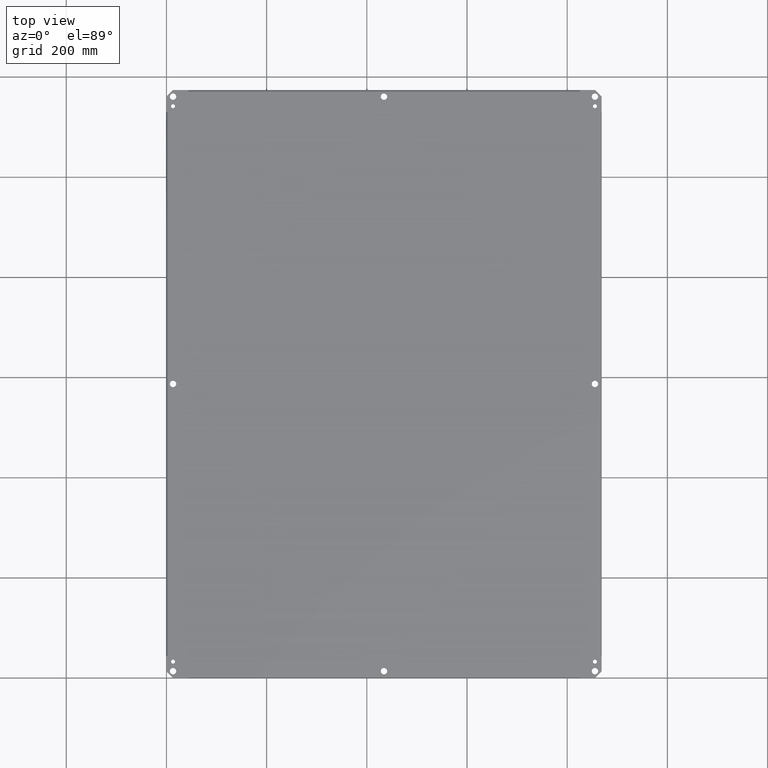
[diagram: clean part render]
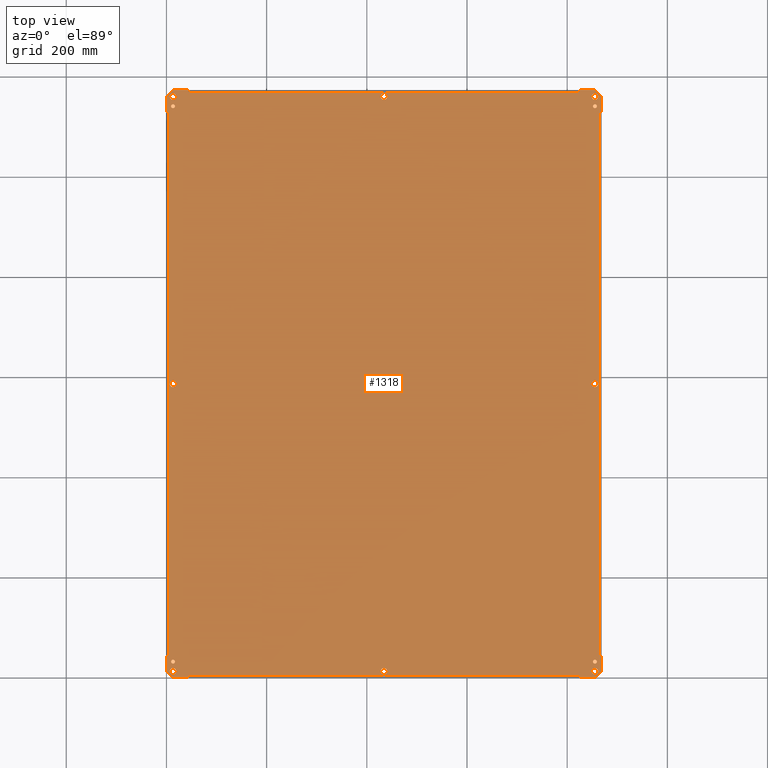
[diagram: same view with one face highlighted and labeled with its STEP entity id]
A machine part, top view. The second image highlights one B-rep face of the part: STEP entity #1318.
In plain terms, the highlighted planar face has unit normal (0, 0, 1).
Its self-contained STEP definition (entity closure, byte-faithful):
#90=CARTESIAN_POINT('',(33.929999999999993,23.100000000000001,0.09375));
#91=VERTEX_POINT('',#90);
#92=CARTESIAN_POINT('',(33.679999999999993,23.100000000000001,0.09375));
#93=DIRECTION('',(0.0,0.0,-1.0));
#94=DIRECTION('',(-1.0,0.0,0.0));
#95=AXIS2_PLACEMENT_3D('',#92,#93,#94);
#96=CIRCLE('',#95,0.250000000000001);
#97=EDGE_CURVE('',#91,#91,#96,.T.);
#118=CARTESIAN_POINT('',(0.770000000000001,23.100000000000001,0.09375));
#119=VERTEX_POINT('',#118);
#120=CARTESIAN_POINT('',(0.520000000000001,23.100000000000001,0.09375));
#121=DIRECTION('',(0.0,0.0,-1.0));
#122=DIRECTION('',(-1.0,0.0,0.0));
#123=AXIS2_PLACEMENT_3D('',#120,#121,#122);
#124=CIRCLE('',#123,0.250000000000001);
#125=EDGE_CURVE('',#119,#119,#124,.T.);
#146=CARTESIAN_POINT('',(17.349999999999984,0.520000000000001,0.09375));
#147=VERTEX_POINT('',#146);
#148=CARTESIAN_POINT('',(17.099999999999984,0.520000000000001,0.09375));
#149=DIRECTION('',(0.0,0.0,-1.0));
#150=DIRECTION('',(-1.0,0.0,0.0));
#151=AXIS2_PLACEMENT_3D('',#148,#149,#150);
#152=CIRCLE('',#151,0.25);
#153=EDGE_CURVE('',#147,#147,#152,.T.);
#174=CARTESIAN_POINT('',(17.349999999999984,45.68,0.09375));
#175=VERTEX_POINT('',#174);
#176=CARTESIAN_POINT('',(17.099999999999987,45.68,0.09375));
#177=DIRECTION('',(0.0,0.0,-1.0));
#178=DIRECTION('',(-1.0,0.0,0.0));
#179=AXIS2_PLACEMENT_3D('',#176,#177,#178);
#180=CIRCLE('',#179,0.25);
#181=EDGE_CURVE('',#175,#175,#180,.T.);
#248=CARTESIAN_POINT('',(1.718,0.1875,0.09375));
#249=VERTEX_POINT('',#248);
#257=CARTESIAN_POINT('',(1.718,0.1877,0.09375));
#258=VERTEX_POINT('',#257);
#259=CARTESIAN_POINT('',(1.718,0.1877,0.09375));
#260=DIRECTION('',(0.0,-1.0,0.0));
#261=VECTOR('',#260,0.0002);
#262=LINE('',#259,#261);
#263=EDGE_CURVE('',#258,#249,#262,.T.);
#364=CARTESIAN_POINT('',(32.481999999999999,0.1877,0.09375));
#365=VERTEX_POINT('',#364);
#372=CARTESIAN_POINT('',(32.481999999999999,0.1875,0.09375));
#373=VERTEX_POINT('',#372);
#374=CARTESIAN_POINT('',(32.481999999999999,0.1875,0.09375));
#375=DIRECTION('',(0.0,1.0,0.0));
#376=VECTOR('',#375,0.0002);
#377=LINE('',#374,#376);
#378=EDGE_CURVE('',#373,#365,#377,.T.);
#414=CARTESIAN_POINT('',(1.718,0.1875,0.09375));
#415=DIRECTION('',(1.0,0.0,0.0));
#416=VECTOR('',#415,30.763999999999999);
#417=LINE('',#414,#416);
#418=EDGE_CURVE('',#249,#373,#417,.T.);
#439=CARTESIAN_POINT('',(32.482199999999999,0.0,0.09375));
#440=VERTEX_POINT('',#439);
#447=CARTESIAN_POINT('',(32.482199999999999,0.1877,0.09375));
#448=VERTEX_POINT('',#447);
#449=CARTESIAN_POINT('',(32.482199999999999,0.1877,0.09375));
#450=DIRECTION('',(0.0,-1.0,0.0));
#451=VECTOR('',#450,0.1877);
#452=LINE('',#449,#451);
#453=EDGE_CURVE('',#448,#440,#452,.T.);
#476=CARTESIAN_POINT('',(32.481999999999999,0.187699999999999,0.09375));
#477=DIRECTION('',(1.0,0.0,0.0));
#478=VECTOR('',#477,0.0002);
#479=LINE('',#476,#478);
#480=EDGE_CURVE('',#365,#448,#479,.T.);
#500=CARTESIAN_POINT('',(1.7178,0.1877,0.09375));
#501=VERTEX_POINT('',#500);
#502=CARTESIAN_POINT('',(1.7178,0.187699999999999,0.09375));
#503=DIRECTION('',(1.0,0.0,0.0));
#504=VECTOR('',#503,0.0002);
#505=LINE('',#502,#504);
#506=EDGE_CURVE('',#501,#258,#505,.T.);
#531=CARTESIAN_POINT('',(1.7178,0.0,0.09375));
#532=VERTEX_POINT('',#531);
#533=CARTESIAN_POINT('',(1.717799999999999,0.0,0.09375));
#534=DIRECTION('',(0.0,1.0,0.0));
#535=VECTOR('',#534,0.1877);
#536=LINE('',#533,#535);
#537=EDGE_CURVE('',#532,#501,#536,.T.);
#931=CARTESIAN_POINT('',(0.499999999999998,0.0,0.09375));
#932=VERTEX_POINT('',#931);
#933=CARTESIAN_POINT('',(1.7178,0.0,0.09375));
#934=DIRECTION('',(-1.0,0.0,0.0));
#935=VECTOR('',#934,1.217800000000002);
#936=LINE('',#933,#935);
#937=EDGE_CURVE('',#532,#932,#936,.T.);
#949=CARTESIAN_POINT('',(17.099999999999991,23.099999999999998,0.09375));
#950=DIRECTION('',(0.0,0.0,1.0));
#951=DIRECTION('',(1.0,0.0,0.0));
#952=AXIS2_PLACEMENT_3D('',#949,#950,#951);
#953=PLANE('',#952);
#954=ORIENTED_EDGE('',*,*,#453,.T.);
#955=CARTESIAN_POINT('',(33.700000000000003,0.0,0.09375));
#956=VERTEX_POINT('',#955);
#957=CARTESIAN_POINT('',(33.700000000000003,0.0,0.09375));
#958=DIRECTION('',(-1.0,0.0,0.0));
#959=VECTOR('',#958,1.217800000000004);
#960=LINE('',#957,#959);
#961=EDGE_CURVE('',#956,#440,#960,.T.);
#962=ORIENTED_EDGE('',*,*,#961,.F.);
#963=CARTESIAN_POINT('',(34.200000000000003,0.499999999999999,0.09375));
#964=VERTEX_POINT('',#963);
#965=CARTESIAN_POINT('',(34.199999999999996,0.499999999999998,0.09375));
#966=DIRECTION('',(-0.707106781186549,-0.707106781186546,0.0));
#967=VECTOR('',#966,0.707106781186546);
#968=LINE('',#965,#967);
#969=EDGE_CURVE('',#964,#956,#968,.T.);
#970=ORIENTED_EDGE('',*,*,#969,.F.);
#971=CARTESIAN_POINT('',(34.200000000000003,1.717799999999995,0.09375));
#972=VERTEX_POINT('',#971);
#973=CARTESIAN_POINT('',(34.200000000000003,1.717799999999995,0.09375));
#974=DIRECTION('',(0.0,-1.0,0.0));
#975=VECTOR('',#974,1.217799999999996);
#976=LINE('',#973,#975);
#977=EDGE_CURVE('',#972,#964,#976,.T.);
#978=ORIENTED_EDGE('',*,*,#977,.F.);
#979=CARTESIAN_POINT('',(34.01230000000001,1.717799999999995,0.09375));
#980=VERTEX_POINT('',#979);
#981=CARTESIAN_POINT('',(34.200000000000003,1.717799999999996,0.09375));
#982=DIRECTION('',(-1.0,0.0,0.0));
#983=VECTOR('',#982,0.187699999999992);
#984=LINE('',#981,#983);
#985=EDGE_CURVE('',#972,#980,#984,.T.);
#986=ORIENTED_EDGE('',*,*,#985,.T.);
#987=CARTESIAN_POINT('',(34.01230000000001,1.717999999999995,0.09375));
#988=VERTEX_POINT('',#987);
#989=CARTESIAN_POINT('',(34.01230000000001,1.717799999999995,0.09375));
#990=DIRECTION('',(0.0,1.0,0.0));
#991=VECTOR('',#990,0.0002);
#992=LINE('',#989,#991);
#993=EDGE_CURVE('',#980,#988,#992,.T.);
#994=ORIENTED_EDGE('',*,*,#993,.T.);
#995=CARTESIAN_POINT('',(34.01250000000001,1.717999999999995,0.09375));
#996=VERTEX_POINT('',#995);
#997=CARTESIAN_POINT('',(34.01230000000001,1.717999999999995,0.09375));
#998=DIRECTION('',(1.0,0.0,0.0));
#999=VECTOR('',#998,0.0002);
#1000=LINE('',#997,#999);
#1001=EDGE_CURVE('',#988,#996,#1000,.T.);
#1002=ORIENTED_EDGE('',*,*,#1001,.T.);
#1003=CARTESIAN_POINT('',(34.012500000000003,44.482000000000006,0.09375));
#1004=VERTEX_POINT('',#1003);
#1005=CARTESIAN_POINT('',(34.01250000000001,1.717999999999995,0.09375));
#1006=DIRECTION('',(0.0,1.0,0.0));
#1007=VECTOR('',#1006,42.76400000000001);
#1008=LINE('',#1005,#1007);
#1009=EDGE_CURVE('',#996,#1004,#1008,.T.);
#1010=ORIENTED_EDGE('',*,*,#1009,.T.);
#1011=CARTESIAN_POINT('',(34.012300000000003,44.482000000000006,0.09375));
#1012=VERTEX_POINT('',#1011);
#1013=CARTESIAN_POINT('',(34.012500000000003,44.482000000000006,0.09375));
#1014=DIRECTION('',(-1.0,0.0,0.0));
#1015=VECTOR('',#1014,0.0002);
#1016=LINE('',#1013,#1015);
#1017=EDGE_CURVE('',#1004,#1012,#1016,.T.);
#1018=ORIENTED_EDGE('',*,*,#1017,.T.);
#1019=CARTESIAN_POINT('',(34.012300000000003,44.482200000000006,0.09375));
#1020=VERTEX_POINT('',#1019);
#1021=CARTESIAN_POINT('',(34.012300000000003,44.482000000000014,0.09375));
#1022=DIRECTION('',(0.0,1.0,0.0));
#1023=VECTOR('',#1022,0.000199999999992);
#1024=LINE('',#1021,#1023);
#1025=EDGE_CURVE('',#1012,#1020,#1024,.T.);
#1026=ORIENTED_EDGE('',*,*,#1025,.T.);
#1027=CARTESIAN_POINT('',(34.199999999999996,44.482200000000006,0.09375));
#1028=VERTEX_POINT('',#1027);
#1029=CARTESIAN_POINT('',(34.012300000000003,44.482200000000006,0.09375));
#1030=DIRECTION('',(1.0,0.0,0.0));
#1031=VECTOR('',#1030,0.187699999999992);
#1032=LINE('',#1029,#1031);
#1033=EDGE_CURVE('',#1020,#1028,#1032,.T.);
#1034=ORIENTED_EDGE('',*,*,#1033,.T.);
#1035=CARTESIAN_POINT('',(34.199999999999996,45.70000000000001,0.09375));
#1036=VERTEX_POINT('',#1035);
#1037=CARTESIAN_POINT('',(34.199999999999996,45.70000000000001,0.09375));
#1038=DIRECTION('',(0.0,-1.0,0.0));
#1039=VECTOR('',#1038,1.217800000000004);
#1040=LINE('',#1037,#1039);
#1041=EDGE_CURVE('',#1036,#1028,#1040,.T.);
#1042=ORIENTED_EDGE('',*,*,#1041,.F.);
#1043=CARTESIAN_POINT('',(33.699999999999996,46.20000000000001,0.09375));
#1044=VERTEX_POINT('',#1043);
#1045=CARTESIAN_POINT('',(33.699999999999996,46.200000000000003,0.09375));
#1046=DIRECTION('',(0.707106781186547,-0.707106781186547,0.0));
#1047=VECTOR('',#1046,0.707106781186548);
#1048=LINE('',#1045,#1047);
#1049=EDGE_CURVE('',#1044,#1036,#1048,.T.);
#1050=ORIENTED_EDGE('',*,*,#1049,.F.);
#1051=CARTESIAN_POINT('',(32.482199999999992,46.20000000000001,0.09375));
#1052=VERTEX_POINT('',#1051);
#1053=CARTESIAN_POINT('',(32.482199999999992,46.20000000000001,0.09375));
#1054=DIRECTION('',(1.0,0.0,0.0));
#1055=VECTOR('',#1054,1.217800000000004);
#1056=LINE('',#1053,#1055);
#1057=EDGE_CURVE('',#1052,#1044,#1056,.T.);
#1058=ORIENTED_EDGE('',*,*,#1057,.F.);
#1059=CARTESIAN_POINT('',(32.482199999999992,46.012300000000018,0.09375));
#1060=VERTEX_POINT('',#1059);
#1061=CARTESIAN_POINT('',(32.482199999999992,46.20000000000001,0.09375));
#1062=DIRECTION('',(0.0,-1.0,0.0));
#1063=VECTOR('',#1062,0.187699999999992);
#1064=LINE('',#1061,#1063);
#1065=EDGE_CURVE('',#1052,#1060,#1064,.T.);
#1066=ORIENTED_EDGE('',*,*,#1065,.T.);
#1067=CARTESIAN_POINT('',(32.481999999999992,46.012300000000018,0.09375));
#1068=VERTEX_POINT('',#1067);
#1069=CARTESIAN_POINT('',(32.482199999999992,46.012300000000018,0.09375));
#1070=DIRECTION('',(-1.0,0.0,0.0));
#1071=VECTOR('',#1070,0.0002);
#1072=LINE('',#1069,#1071);
#1073=EDGE_CURVE('',#1060,#1068,#1072,.T.);
#1074=ORIENTED_EDGE('',*,*,#1073,.T.);
#1075=CARTESIAN_POINT('',(32.481999999999992,46.012500000000017,0.09375));
#1076=VERTEX_POINT('',#1075);
#1077=CARTESIAN_POINT('',(32.481999999999992,46.012300000000018,0.09375));
#1078=DIRECTION('',(0.0,1.0,0.0));
#1079=VECTOR('',#1078,0.0002);
#1080=LINE('',#1077,#1079);
#1081=EDGE_CURVE('',#1068,#1076,#1080,.T.);
#1082=ORIENTED_EDGE('',*,*,#1081,.T.);
#1083=CARTESIAN_POINT('',(1.717999999999987,46.01250000000001,0.09375));
#1084=VERTEX_POINT('',#1083);
#1085=CARTESIAN_POINT('',(32.481999999999992,46.012500000000017,0.09375));
#1086=DIRECTION('',(-1.0,0.0,0.0));
#1087=VECTOR('',#1086,30.764000000000006);
#1088=LINE('',#1085,#1087);
#1089=EDGE_CURVE('',#1076,#1084,#1088,.T.);
#1090=ORIENTED_EDGE('',*,*,#1089,.T.);
#1091=CARTESIAN_POINT('',(1.717999999999987,46.01230000000001,0.09375));
#1092=VERTEX_POINT('',#1091);
#1093=CARTESIAN_POINT('',(1.717999999999986,46.01250000000001,0.09375));
#1094=DIRECTION('',(0.0,-1.0,0.0));
#1095=VECTOR('',#1094,0.0002);
#1096=LINE('',#1093,#1095);
#1097=EDGE_CURVE('',#1084,#1092,#1096,.T.);
#1098=ORIENTED_EDGE('',*,*,#1097,.T.);
#1099=CARTESIAN_POINT('',(1.717799999999987,46.01230000000001,0.09375));
#1100=VERTEX_POINT('',#1099);
#1101=CARTESIAN_POINT('',(1.717999999999987,46.01230000000001,0.09375));
#1102=DIRECTION('',(-1.0,0.0,0.0));
#1103=VECTOR('',#1102,0.000199999999999);
#1104=LINE('',#1101,#1103);
#1105=EDGE_CURVE('',#1092,#1100,#1104,.T.);
#1106=ORIENTED_EDGE('',*,*,#1105,.T.);
#1107=CARTESIAN_POINT('',(1.717799999999987,46.200000000000003,0.09375));
#1108=VERTEX_POINT('',#1107);
#1109=CARTESIAN_POINT('',(1.717799999999988,46.01230000000001,0.09375));
#1110=DIRECTION('',(0.0,1.0,0.0));
#1111=VECTOR('',#1110,0.187699999999992);
#1112=LINE('',#1109,#1111);
#1113=EDGE_CURVE('',#1100,#1108,#1112,.T.);
#1114=ORIENTED_EDGE('',*,*,#1113,.T.);
#1115=CARTESIAN_POINT('',(0.499999999999987,46.200000000000003,0.09375));
#1116=VERTEX_POINT('',#1115);
#1117=CARTESIAN_POINT('',(0.499999999999986,46.200000000000003,0.09375));
#1118=DIRECTION('',(1.0,0.0,0.0));
#1119=VECTOR('',#1118,1.217800000000004);
#1120=LINE('',#1117,#1119);
#1121=EDGE_CURVE('',#1116,#1108,#1120,.T.);
#1122=ORIENTED_EDGE('',*,*,#1121,.F.);
#1123=CARTESIAN_POINT('',(-1.399159E-014,45.700000000000003,0.09375));
#1124=VERTEX_POINT('',#1123);
#1125=CARTESIAN_POINT('',(-1.554312E-014,45.70000000000001,0.09375));
#1126=DIRECTION('',(0.707106781186548,0.707106781186547,0.0));
#1127=VECTOR('',#1126,0.707106781186548);
#1128=LINE('',#1125,#1127);
#1129=EDGE_CURVE('',#1124,#1116,#1128,.T.);
#1130=ORIENTED_EDGE('',*,*,#1129,.F.);
#1131=CARTESIAN_POINT('',(-1.361553E-014,44.482199999999999,0.09375));
#1132=VERTEX_POINT('',#1131);
#1133=CARTESIAN_POINT('',(-1.361875E-014,44.482199999999999,0.09375));
#1134=DIRECTION('',(0.0,1.0,0.0));
#1135=VECTOR('',#1134,1.217800000000004);
#1136=LINE('',#1133,#1135);
#1137=EDGE_CURVE('',#1132,#1124,#1136,.T.);
#1138=ORIENTED_EDGE('',*,*,#1137,.F.);
#1139=CARTESIAN_POINT('',(0.187699999999973,44.482199999999999,0.09375));
#1140=VERTEX_POINT('',#1139);
#1141=CARTESIAN_POINT('',(-1.421085E-014,44.482199999999999,0.09375));
#1142=DIRECTION('',(1.0,0.0,0.0));
#1143=VECTOR('',#1142,0.187699999999987);
#1144=LINE('',#1141,#1143);
#1145=EDGE_CURVE('',#1132,#1140,#1144,.T.);
#1146=ORIENTED_EDGE('',*,*,#1145,.T.);
#1147=CARTESIAN_POINT('',(0.187699999999973,44.481999999999999,0.09375));
#1148=VERTEX_POINT('',#1147);
#1149=CARTESIAN_POINT('',(0.187699999999974,44.482199999999999,0.09375));
#1150=DIRECTION('',(0.0,-1.0,0.0));
#1151=VECTOR('',#1150,0.0002);
#1152=LINE('',#1149,#1151);
#1153=EDGE_CURVE('',#1140,#1148,#1152,.T.);
#1154=ORIENTED_EDGE('',*,*,#1153,.T.);
#1155=CARTESIAN_POINT('',(0.187499999999973,44.481999999999999,0.09375));
#1156=VERTEX_POINT('',#1155);
#1157=CARTESIAN_POINT('',(0.187699999999973,44.481999999999999,0.09375));
#1158=DIRECTION('',(-1.0,0.0,0.0));
#1159=VECTOR('',#1158,0.0002);
#1160=LINE('',#1157,#1159);
#1161=EDGE_CURVE('',#1148,#1156,#1160,.T.);
#1162=ORIENTED_EDGE('',*,*,#1161,.T.);
#1163=CARTESIAN_POINT('',(0.187499999999986,1.717999999999998,0.09375));
#1164=VERTEX_POINT('',#1163);
#1165=CARTESIAN_POINT('',(0.187499999999972,44.481999999999999,0.09375));
#1166=DIRECTION('',(0.0,-1.0,0.0));
#1167=VECTOR('',#1166,42.764000000000003);
#1168=LINE('',#1165,#1167);
#1169=EDGE_CURVE('',#1156,#1164,#1168,.T.);
#1170=ORIENTED_EDGE('',*,*,#1169,.T.);
#1171=CARTESIAN_POINT('',(0.187699999999986,1.717999999999998,0.09375));
#1172=VERTEX_POINT('',#1171);
#1173=CARTESIAN_POINT('',(0.187499999999986,1.717999999999998,0.09375));
#1174=DIRECTION('',(1.0,0.0,0.0));
#1175=VECTOR('',#1174,0.0002);
#1176=LINE('',#1173,#1175);
#1177=EDGE_CURVE('',#1164,#1172,#1176,.T.);
#1178=ORIENTED_EDGE('',*,*,#1177,.T.);
#1179=CARTESIAN_POINT('',(0.187699999999986,1.717799999999998,0.09375));
#1180=VERTEX_POINT('',#1179);
#1181=CARTESIAN_POINT('',(0.187699999999985,1.718,0.09375));
#1182=DIRECTION('',(0.0,-1.0,0.0));
#1183=VECTOR('',#1182,0.000200000000001);
#1184=LINE('',#1181,#1183);
#1185=EDGE_CURVE('',#1172,#1180,#1184,.T.);
#1186=ORIENTED_EDGE('',*,*,#1185,.T.);
#1187=CARTESIAN_POINT('',(-5.245148E-016,1.717799999999998,0.09375));
#1188=VERTEX_POINT('',#1187);
#1189=CARTESIAN_POINT('',(0.187699999999985,1.717799999999999,0.09375));
#1190=DIRECTION('',(-1.0,0.0,0.0));
#1191=VECTOR('',#1190,0.187699999999985);
#1192=LINE('',#1189,#1191);
#1193=EDGE_CURVE('',#1180,#1188,#1192,.T.);
#1194=ORIENTED_EDGE('',*,*,#1193,.T.);
#1195=CARTESIAN_POINT('',(-1.530808E-016,0.499999999999998,0.09375));
#1196=VERTEX_POINT('',#1195);
#1197=CARTESIAN_POINT('',(-1.530808E-016,0.5,0.09375));
#1198=DIRECTION('',(0.0,1.0,0.0));
#1199=VECTOR('',#1198,1.217799999999997);
#1200=LINE('',#1197,#1199);
#1201=EDGE_CURVE('',#1196,#1188,#1200,.T.);
#1202=ORIENTED_EDGE('',*,*,#1201,.F.);
#1203=CARTESIAN_POINT('',(0.499999999999997,-1.110223E-015,0.09375));
#1204=DIRECTION('',(-0.707106781186547,0.707106781186548,0.0));
#1205=VECTOR('',#1204,0.707106781186546);
#1206=LINE('',#1203,#1205);
#1207=EDGE_CURVE('',#932,#1196,#1206,.T.);
#1208=ORIENTED_EDGE('',*,*,#1207,.F.);
#1209=ORIENTED_EDGE('',*,*,#937,.F.);
#1210=ORIENTED_EDGE('',*,*,#537,.T.);
#1211=ORIENTED_EDGE('',*,*,#506,.T.);
#1212=ORIENTED_EDGE('',*,*,#263,.T.);
#1213=ORIENTED_EDGE('',*,*,#418,.T.);
#1214=ORIENTED_EDGE('',*,*,#378,.T.);
#1215=ORIENTED_EDGE('',*,*,#480,.T.);
#1216=EDGE_LOOP('',(#954,#962,#970,#978,#986,#994,#1002,#1010,#1018,#1026,#1034,#1042,#1050,#1058,#1066,#1074,#1082,#1090,#1098,#1106,#1114,#1122,#1130,#1138,#1146,#1154,#1162,#1170,#1178,#1186,#1194,#1202,#1208,#1209,#1210,#1211,#1212,#1213,#1214,#1215));
#1217=FACE_OUTER_BOUND('',#1216,.T.);
#1218=ORIENTED_EDGE('',*,*,#97,.T.);
#1219=EDGE_LOOP('',(#1218));
#1220=FACE_BOUND('',#1219,.T.);
#1221=ORIENTED_EDGE('',*,*,#125,.T.);
#1222=EDGE_LOOP('',(#1221));
#1223=FACE_BOUND('',#1222,.T.);
#1224=ORIENTED_EDGE('',*,*,#153,.T.);
#1225=EDGE_LOOP('',(#1224));
#1226=FACE_BOUND('',#1225,.T.);
#1227=ORIENTED_EDGE('',*,*,#181,.T.);
#1228=EDGE_LOOP('',(#1227));
#1229=FACE_BOUND('',#1228,.T.);
#1230=CARTESIAN_POINT('',(33.93,45.680000000000007,0.09375));
#1231=VERTEX_POINT('',#1230);
#1232=CARTESIAN_POINT('',(33.68,45.680000000000007,0.09375));
#1233=DIRECTION('',(0.0,0.0,-1.0));
#1234=DIRECTION('',(-1.0,0.0,0.0));
#1235=AXIS2_PLACEMENT_3D('',#1232,#1233,#1234);
#1236=CIRCLE('',#1235,0.25);
#1237=EDGE_CURVE('',#1231,#1231,#1236,.T.);
#1238=ORIENTED_EDGE('',*,*,#1237,.T.);
#1239=EDGE_LOOP('',(#1238));
#1240=FACE_BOUND('',#1239,.T.);
#1241=CARTESIAN_POINT('',(0.770000000000001,45.68,0.09375));
#1242=VERTEX_POINT('',#1241);
#1243=CARTESIAN_POINT('',(0.520000000000001,45.68,0.09375));
#1244=DIRECTION('',(0.0,0.0,-1.0));
#1245=DIRECTION('',(-1.0,0.0,0.0));
#1246=AXIS2_PLACEMENT_3D('',#1243,#1244,#1245);
#1247=CIRCLE('',#1246,0.25);
#1248=EDGE_CURVE('',#1242,#1242,#1247,.T.);
#1249=ORIENTED_EDGE('',*,*,#1248,.T.);
#1250=EDGE_LOOP('',(#1249));
#1251=FACE_BOUND('',#1250,.T.);
#1252=CARTESIAN_POINT('',(0.77,0.52,0.09375));
#1253=VERTEX_POINT('',#1252);
#1254=CARTESIAN_POINT('',(0.52,0.52,0.09375));
#1255=DIRECTION('',(0.0,0.0,-1.0));
#1256=DIRECTION('',(-1.0,0.0,0.0));
#1257=AXIS2_PLACEMENT_3D('',#1254,#1255,#1256);
#1258=CIRCLE('',#1257,0.25);
#1259=EDGE_CURVE('',#1253,#1253,#1258,.T.);
#1260=ORIENTED_EDGE('',*,*,#1259,.T.);
#1261=EDGE_LOOP('',(#1260));
#1262=FACE_BOUND('',#1261,.T.);
#1263=CARTESIAN_POINT('',(33.93,0.520000000000001,0.09375));
#1264=VERTEX_POINT('',#1263);
#1265=CARTESIAN_POINT('',(33.68,0.520000000000001,0.09375));
#1266=DIRECTION('',(0.0,0.0,-1.0));
#1267=DIRECTION('',(-1.0,0.0,0.0));
#1268=AXIS2_PLACEMENT_3D('',#1265,#1266,#1267);
#1269=CIRCLE('',#1268,0.25);
#1270=EDGE_CURVE('',#1264,#1264,#1269,.T.);
#1271=ORIENTED_EDGE('',*,*,#1270,.T.);
#1272=EDGE_LOOP('',(#1271));
#1273=FACE_BOUND('',#1272,.T.);
#1274=CARTESIAN_POINT('',(33.836249999999993,44.930000000000007,0.09375));
#1275=VERTEX_POINT('',#1274);
#1276=CARTESIAN_POINT('',(33.68,44.930000000000007,0.09375));
#1277=DIRECTION('',(0.0,0.0,-1.0));
#1278=DIRECTION('',(-1.0,0.0,0.0));
#1279=AXIS2_PLACEMENT_3D('',#1276,#1277,#1278);
#1280=CIRCLE('',#1279,0.15625);
#1281=EDGE_CURVE('',#1275,#1275,#1280,.T.);
#1282=ORIENTED_EDGE('',*,*,#1281,.T.);
#1283=EDGE_LOOP('',(#1282));
#1284=FACE_BOUND('',#1283,.T.);
#1285=CARTESIAN_POINT('',(0.67625,44.93,0.09375));
#1286=VERTEX_POINT('',#1285);
#1287=CARTESIAN_POINT('',(0.520000000000001,44.93,0.09375));
#1288=DIRECTION('',(0.0,0.0,-1.0));
#1289=DIRECTION('',(-1.0,0.0,0.0));
#1290=AXIS2_PLACEMENT_3D('',#1287,#1288,#1289);
#1291=CIRCLE('',#1290,0.15625);
#1292=EDGE_CURVE('',#1286,#1286,#1291,.T.);
#1293=ORIENTED_EDGE('',*,*,#1292,.T.);
#1294=EDGE_LOOP('',(#1293));
#1295=FACE_BOUND('',#1294,.T.);
#1296=CARTESIAN_POINT('',(0.676249999999999,1.27,0.09375));
#1297=VERTEX_POINT('',#1296);
#1298=CARTESIAN_POINT('',(0.519999999999999,1.27,0.09375));
#1299=DIRECTION('',(0.0,0.0,-1.0));
#1300=DIRECTION('',(-1.0,0.0,0.0));
#1301=AXIS2_PLACEMENT_3D('',#1298,#1299,#1300);
#1302=CIRCLE('',#1301,0.15625);
#1303=EDGE_CURVE('',#1297,#1297,#1302,.T.);
#1304=ORIENTED_EDGE('',*,*,#1303,.T.);
#1305=EDGE_LOOP('',(#1304));
#1306=FACE_BOUND('',#1305,.T.);
#1307=CARTESIAN_POINT('',(33.836249999999993,1.270000000000001,0.09375));
#1308=VERTEX_POINT('',#1307);
#1309=CARTESIAN_POINT('',(33.68,1.270000000000001,0.09375));
#1310=DIRECTION('',(0.0,0.0,-1.0));
#1311=DIRECTION('',(-1.0,0.0,0.0));
#1312=AXIS2_PLACEMENT_3D('',#1309,#1310,#1311);
#1313=CIRCLE('',#1312,0.15625);
#1314=EDGE_CURVE('',#1308,#1308,#1313,.T.);
#1315=ORIENTED_EDGE('',*,*,#1314,.T.);
#1316=EDGE_LOOP('',(#1315));
#1317=FACE_BOUND('',#1316,.T.);
#1318=ADVANCED_FACE('',(#1217,#1220,#1223,#1226,#1229,#1240,#1251,#1262,#1273,#1284,#1295,#1306,#1317),#953,.T.);